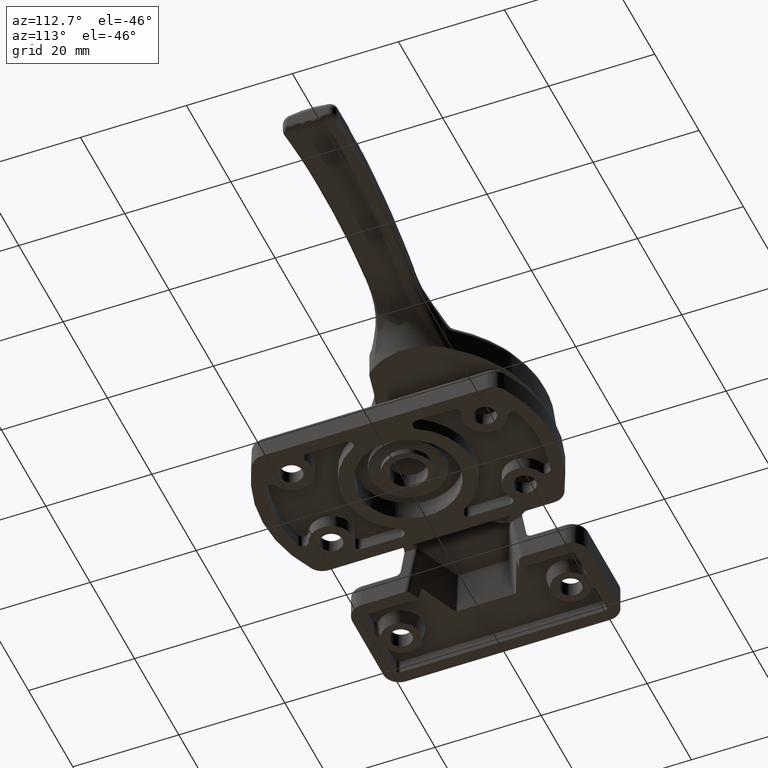
[diagram: clean part render]
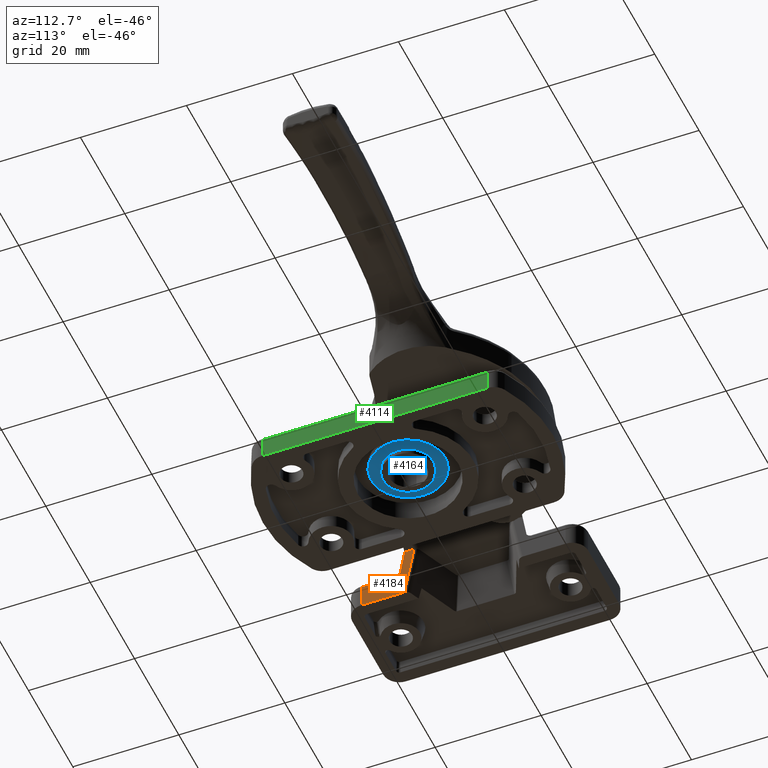
[diagram: same view with three faces highlighted in distinct colors, each labeled with its STEP entity id]
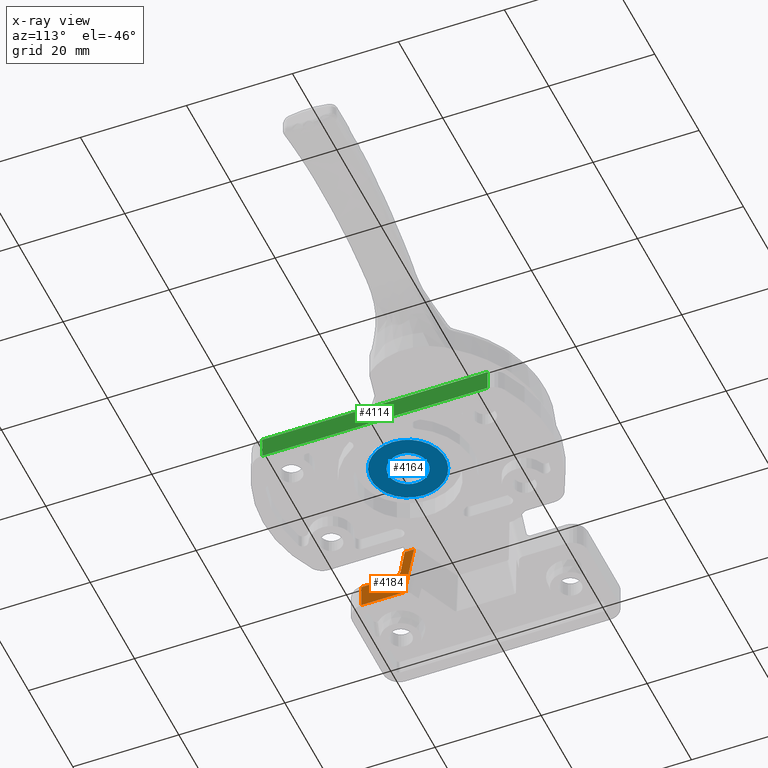
[diagram: x-ray of the same camera — body ghosted, the three highlighted faces saturated]
A machine part, auxiliary view with three faces highlighted in distinct colors.
The next image is the same camera in x-ray (body ghosted, the three faces saturated) — at least one of them is partly hidden behind the body in this view.
Their STEP definitions:

[orange] entity #4184 — the highlighted planar face has unit normal (1, 0, 0).
#291=B_SPLINE_CURVE_WITH_KNOTS('',3,(#7245,#7246,#7247,#7248,#7249,#7250,
#7251,#7252,#7253,#7254,#7255,#7256,#7257,#7258,#7259,#7260,#7261,#7262,
#7263,#7264),.UNSPECIFIED.,.F.,.F.,(4,2,2,2,2,2,2,2,2,4),(0.,0.0133438421371967,
0.0286119868150927,0.0573767167924527,0.0954814479470772,0.113067854491423,
0.121490756987358,0.125599532483179,0.131106249987306,0.131963988531839),
 .UNSPECIFIED.);
#468=PLANE('',#4597);
#565=LINE('',#7086,#737);
#569=LINE('',#7104,#741);
#585=LINE('',#7241,#757);
#586=LINE('',#7243,#758);
#587=LINE('',#7266,#759);
#588=LINE('',#7267,#760);
#737=VECTOR('',#5373,8.0796502339873);
#741=VECTOR('',#5391,1.77480938368453);
#757=VECTOR('',#5433,10.165122848643);
#758=VECTOR('',#5434,4.6818083224188);
#759=VECTOR('',#5435,6.46468837493999);
#760=VECTOR('',#5436,4.49999999977665);
#1091=FACE_OUTER_BOUND('',#1403,.T.);
#1403=EDGE_LOOP('',(#3272,#3273,#3274,#3275,#3276,#3277,#3278));
#1996=VERTEX_POINT('',#7083);
#1997=VERTEX_POINT('',#7085);
#2003=VERTEX_POINT('',#7101);
#2004=VERTEX_POINT('',#7103);
#2021=VERTEX_POINT('',#7242);
#2022=VERTEX_POINT('',#7244);
#2023=VERTEX_POINT('',#7265);
#2444=EDGE_CURVE('',#1996,#1997,#565,.T.);
#2453=EDGE_CURVE('',#2003,#2004,#569,.T.);
#2477=EDGE_CURVE('',#1996,#2004,#585,.T.);
#2478=EDGE_CURVE('',#2003,#2021,#586,.T.);
#2479=EDGE_CURVE('',#2021,#2022,#291,.T.);
#2480=EDGE_CURVE('',#2022,#2023,#587,.T.);
#2481=EDGE_CURVE('',#2023,#1997,#588,.T.);
#3272=ORIENTED_EDGE('',*,*,#2477,.T.);
#3273=ORIENTED_EDGE('',*,*,#2453,.F.);
#3274=ORIENTED_EDGE('',*,*,#2478,.T.);
#3275=ORIENTED_EDGE('',*,*,#2479,.T.);
#3276=ORIENTED_EDGE('',*,*,#2480,.T.);
#3277=ORIENTED_EDGE('',*,*,#2481,.T.);
#3278=ORIENTED_EDGE('',*,*,#2444,.F.);
#4184=ADVANCED_FACE('',(#1091),#468,.T.);
#4597=AXIS2_PLACEMENT_3D('',#7240,#5431,#5432);
#5373=DIRECTION('',(0.,0.,-1.));
#5391=DIRECTION('',(0.,0.,1.));
#5431=DIRECTION('center_axis',(-1.,0.,0.));
#5432=DIRECTION('ref_axis',(0.,0.,1.));
#5433=DIRECTION('',(0.,0.98375594163095,0.179511134211231));
#5434=DIRECTION('',(0.,-0.986979857274451,-0.160843903628654));
#5435=DIRECTION('',(0.,0.,-1.));
#5436=DIRECTION('',(0.,-1.,0.));
#7083=CARTESIAN_POINT('',(-1.00000000001091,4.535,-11.1703497660127));
#7085=CARTESIAN_POINT('',(-1.,4.535,-19.25));
#7086=CARTESIAN_POINT('',(-1.,4.535,-22.25));
#7101=CARTESIAN_POINT('',(-1.00010231676553,14.5349948759557,-11.1203879097386));
#7103=CARTESIAN_POINT('',(-0.999999999632774,14.5349999999196,-9.34559703492516));
#7104=CARTESIAN_POINT('',(-1.,14.535,-11.253876746));
#7240=CARTESIAN_POINT('Origin',(-1.,9.535,-19.25));
#7241=CARTESIAN_POINT('',(-1.,4.535,-11.170349766));
#7242=CARTESIAN_POINT('',(-0.999999999432703,9.91413686320814,-11.8733849738466));
#7243=CARTESIAN_POINT('',(-1.,14.535,-11.120342589));
#7244=CARTESIAN_POINT('',(-0.999999956311625,9.03499751977651,-12.7853116247601));
#7245=CARTESIAN_POINT('Ctrl Pts',(-1.,9.91413686183853,-11.8733849746741));
#7246=CARTESIAN_POINT('Ctrl Pts',(-1.,9.87023598668736,-11.8805393132667));
#7247=CARTESIAN_POINT('Ctrl Pts',(-1.,9.82753697036818,-11.8932823937798));
#7248=CARTESIAN_POINT('Ctrl Pts',(-1.,9.73950993423301,-11.9302604369759));
#7249=CARTESIAN_POINT('Ctrl Pts',(-1.,9.69513948387197,-11.9556899189708));
#7250=CARTESIAN_POINT('Ctrl Pts',(-1.,9.57494792136698,-12.0404838148165));
#7251=CARTESIAN_POINT('Ctrl Pts',(-1.00000000000002,9.5059970360639,-12.1099566091822));
#7252=CARTESIAN_POINT('Ctrl Pts',(-1.00000000000002,9.36336416015803,-12.2820710069837));
#7253=CARTESIAN_POINT('Ctrl Pts',(-1.,9.29158927074501,-12.3931025589258));
#7254=CARTESIAN_POINT('Ctrl Pts',(-1.,9.1933313051566,-12.5483807567701));
#7255=CARTESIAN_POINT('Ctrl Pts',(-1.,9.162040799785,-12.5983396872471));
#7256=CARTESIAN_POINT('Ctrl Pts',(-1.,9.11505860230395,-12.6704006811509));
#7257=CARTESIAN_POINT('Ctrl Pts',(-1.,9.09976495017808,-12.6934078063564));
#7258=CARTESIAN_POINT('Ctrl Pts',(-1.,9.07628576293447,-12.7276138536092));
#7259=CARTESIAN_POINT('Ctrl Pts',(-0.999999999999951,9.06851465454224,-12.7387627139945));
#7260=CARTESIAN_POINT('Ctrl Pts',(-0.999999999999951,9.05009882397065,-12.7647190745553));
#7261=CARTESIAN_POINT('Ctrl Pts',(-1.,9.04153383640325,-12.7764430744141));
#7262=CARTESIAN_POINT('Ctrl Pts',(-1.,9.03638311523305,-12.7834021640169));
#7263=CARTESIAN_POINT('Ctrl Pts',(-0.999999934793071,9.03604278423222,-12.7838857984451));
#7264=CARTESIAN_POINT('Ctrl Pts',(-0.999999934549584,9.03499256366668,-12.7853079648449));
#7265=CARTESIAN_POINT('',(-1.00000000009253,9.03499999977665,-19.2499999997001));
#7266=CARTESIAN_POINT('',(-1.,9.035,-19.25));
#7267=CARTESIAN_POINT('',(-1.,9.535,-19.25));

[blue] entity #4164 — the highlighted planar face has unit normal (-0, 0, -1).
#460=PLANE('',#4544);
#973=FACE_BOUND('',#1375,.T.);
#1071=FACE_OUTER_BOUND('',#1374,.T.);
#1374=EDGE_LOOP('',(#3166));
#1375=EDGE_LOOP('',(#3167));
#1688=CIRCLE('',#4539,3.75);
#1689=CIRCLE('',#4541,7.);
#1952=VERTEX_POINT('',#6890);
#1953=VERTEX_POINT('',#6893);
#2396=EDGE_CURVE('',#1952,#1952,#1688,.T.);
#2397=EDGE_CURVE('',#1953,#1953,#1689,.T.);
#3166=ORIENTED_EDGE('',*,*,#2397,.T.);
#3167=ORIENTED_EDGE('',*,*,#2396,.T.);
#4164=ADVANCED_FACE('',(#1071,#973),#460,.T.);
#4539=AXIS2_PLACEMENT_3D('',#6891,#5276,#5277);
#4541=AXIS2_PLACEMENT_3D('',#6894,#5280,#5281);
#4544=AXIS2_PLACEMENT_3D('',#6898,#5286,#5287);
#5276=DIRECTION('center_axis',(0.,0.,1.));
#5277=DIRECTION('ref_axis',(-1.,0.,0.));
#5280=DIRECTION('center_axis',(0.,0.,-1.));
#5281=DIRECTION('ref_axis',(-1.,0.,0.));
#5286=DIRECTION('center_axis',(0.,0.,-1.));
#5287=DIRECTION('ref_axis',(-1.,0.,0.));
#6890=CARTESIAN_POINT('',(3.75,4.59242549680257E-16,0.));
#6891=CARTESIAN_POINT('Origin',(0.,0.,0.));
#6893=CARTESIAN_POINT('',(7.,8.57252759403147E-16,0.));
#6894=CARTESIAN_POINT('Origin',(0.,0.,0.));
#6898=CARTESIAN_POINT('Origin',(0.,0.,0.));

[green] entity #4114 — the highlighted planar face has unit normal (1, 0, -0).
#452=PLANE('',#4444);
#503=LINE('',#6102,#675);
#536=LINE('',#6259,#708);
#537=LINE('',#6261,#709);
#538=LINE('',#6262,#710);
#675=VECTOR('',#4915,42.4904697731117);
#708=VECTOR('',#5078,4.00000000000017);
#709=VECTOR('',#5079,4.);
#710=VECTOR('',#5080,42.4904695753867);
#1021=FACE_OUTER_BOUND('',#1297,.T.);
#1297=EDGE_LOOP('',(#2978,#2979,#2980,#2981));
#1856=VERTEX_POINT('',#6099);
#1857=VERTEX_POINT('',#6101);
#1916=VERTEX_POINT('',#6258);
#1917=VERTEX_POINT('',#6260);
#2257=EDGE_CURVE('',#1856,#1857,#503,.T.);
#2335=EDGE_CURVE('',#1916,#1857,#536,.T.);
#2336=EDGE_CURVE('',#1856,#1917,#537,.T.);
#2337=EDGE_CURVE('',#1917,#1916,#538,.T.);
#2978=ORIENTED_EDGE('',*,*,#2335,.T.);
#2979=ORIENTED_EDGE('',*,*,#2257,.F.);
#2980=ORIENTED_EDGE('',*,*,#2336,.T.);
#2981=ORIENTED_EDGE('',*,*,#2337,.T.);
#4114=ADVANCED_FACE('',(#1021),#452,.T.);
#4444=AXIS2_PLACEMENT_3D('',#6257,#5076,#5077);
#4915=DIRECTION('',(-1.,0.,0.));
#5076=DIRECTION('center_axis',(0.,1.,0.));
#5077=DIRECTION('ref_axis',(0.,0.,1.));
#5078=DIRECTION('',(0.,0.,1.));
#5079=DIRECTION('',(0.,0.,-1.));
#5080=DIRECTION('',(-1.,0.,0.));
#6099=CARTESIAN_POINT('',(21.2452377673179,14.9999999998591,0.));
#6101=CARTESIAN_POINT('',(-21.2452320057937,14.9999999998591,0.));
#6102=CARTESIAN_POINT('',(0.,14.9999999995783,0.));
#6257=CARTESIAN_POINT('Origin',(2.87949999844272E-6,15.,-4.));
#6258=CARTESIAN_POINT('',(-21.2452318093867,14.9999999999998,-4.00000000000017));
#6259=CARTESIAN_POINT('',(-21.245232007,15.,-4.));
#6260=CARTESIAN_POINT('',(21.245237766,14.9999999999997,-4.));
#6261=CARTESIAN_POINT('',(21.245237766,15.,-4.));
#6262=CARTESIAN_POINT('',(2.87949999844272E-6,15.,-4.));